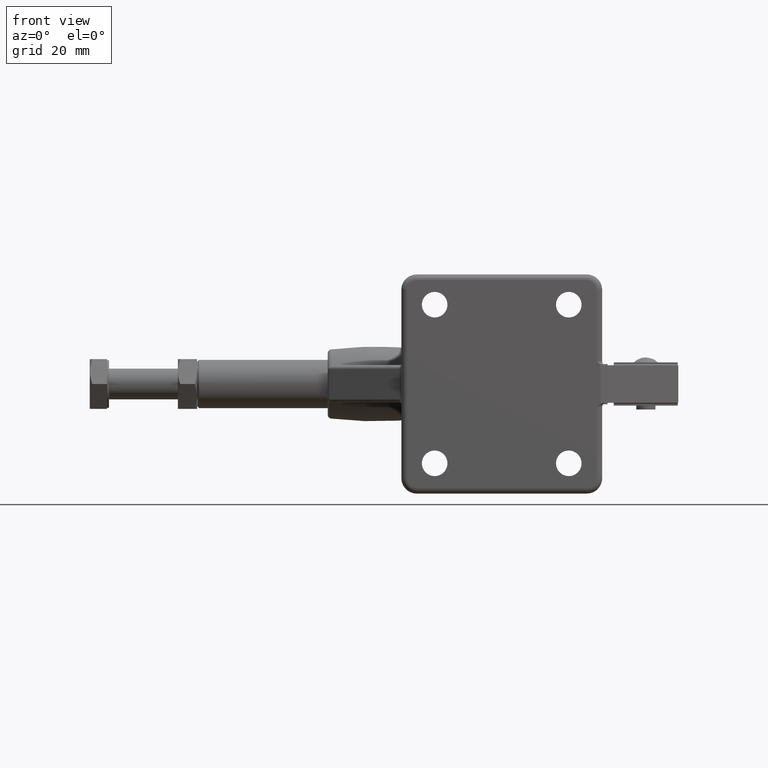
[diagram: clean part render]
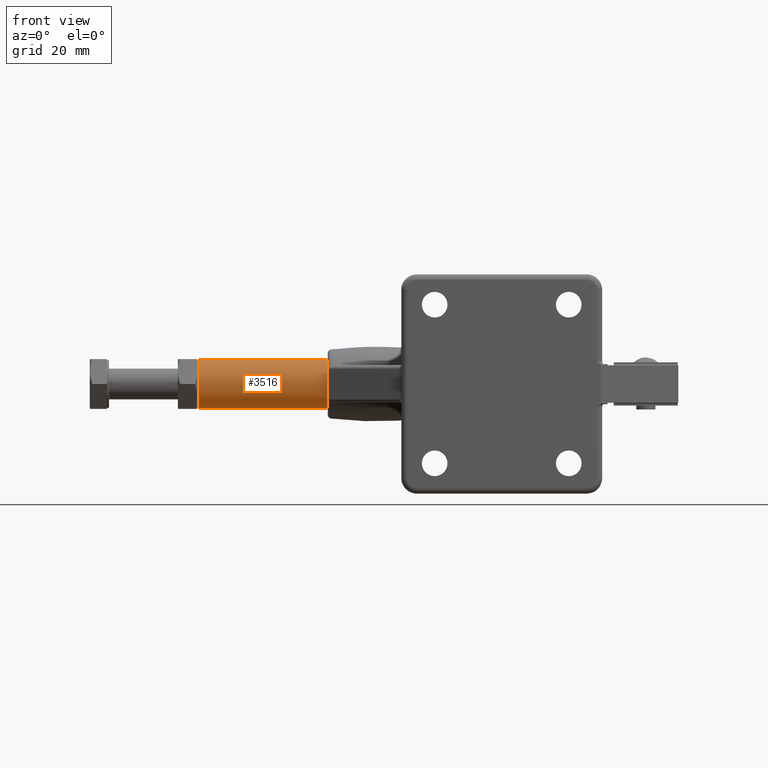
[diagram: same view with one face highlighted and labeled with its STEP entity id]
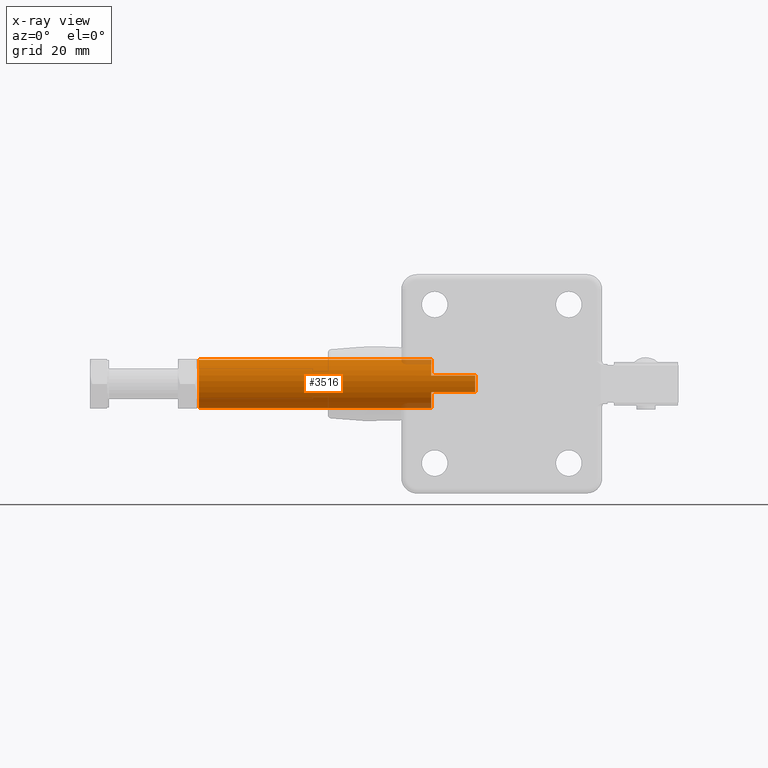
[diagram: x-ray of the same camera — body ghosted, the highlighted face saturated]
A machine part, front view. The second image highlights one B-rep face of the part: STEP entity #3516.
The next image is the same camera in x-ray: the body ghosted, the highlighted face saturated — about 2% of this face is hidden behind the body in this view.
In plain terms, the highlighted cylindrical surface (edge-blend (fillet) strip) has radius 6.29 mm, axis along (1, 0, 0).
Its self-contained STEP definition (entity closure, byte-faithful):
#322 = VERTEX_POINT ( 'NONE', #1667 ) ;
#547 = CARTESIAN_POINT ( 'NONE',  ( -123.6925406949552800, 25.39999999999909300, 6.289999999999988500 ) ) ;
#894 = EDGE_CURVE ( 'NONE', #2171, #7753, #6251, .T. ) ;
#983 = VECTOR ( 'NONE', #1307, 1000.000000000000000 ) ;
#1085 = VERTEX_POINT ( 'NONE', #4457 ) ;
#1236 = VERTEX_POINT ( 'NONE', #3031 ) ;
#1290 = CARTESIAN_POINT ( 'NONE',  ( -62.59254069495528900, 19.50728415753731700, 2.199999999999986000 ) ) ;
#1307 = DIRECTION ( 'NONE',  ( 1.000000000000000000, 0.0000000000000000000, 0.0000000000000000000 ) ) ;
#1425 = CARTESIAN_POINT ( 'NONE',  ( -123.1925406949552800, 25.39999999999909300, -1.214103693813256000E-014 ) ) ;
#1515 = DIRECTION ( 'NONE',  ( -1.000000000000000000, -0.0000000000000000000, -0.0000000000000000000 ) ) ;
#1667 = CARTESIAN_POINT ( 'NONE',  ( -62.59254069495528900, 25.39999999999909300, -6.290000000000012500 ) ) ;
#1818 = LINE ( 'NONE', #7761, #3562 ) ;
#1836 = VECTOR ( 'NONE', #1515, 1000.000000000000000 ) ;
#2171 = VERTEX_POINT ( 'NONE', #7708 ) ;
#2190 = DIRECTION ( 'NONE',  ( 0.0000000000000000000, 0.0000000000000000000, -1.000000000000000000 ) ) ;
#2367 = LINE ( 'NONE', #5393, #8293 ) ;
#2486 = VERTEX_POINT ( 'NONE', #4437 ) ;
#2552 = AXIS2_PLACEMENT_3D ( 'NONE', #3302, #8479, #4027 ) ;
#2635 = EDGE_CURVE ( 'NONE', #2486, #322, #2367, .T. ) ;
#2655 = AXIS2_PLACEMENT_3D ( 'NONE', #3106, #6730, #5169 ) ;
#2950 = EDGE_CURVE ( 'NONE', #6742, #2486, #3762, .T. ) ;
#3031 = CARTESIAN_POINT ( 'NONE',  ( -62.59254069495528900, 19.50728415753731700, -2.200000000000009900 ) ) ;
#3042 = ORIENTED_EDGE ( 'NONE', *, *, #5786, .F. ) ;
#3047 = EDGE_LOOP ( 'NONE', ( #7207, #7327, #7265, #6583, #3042, #5873, #7188, #3738 ) ) ;
#3106 = CARTESIAN_POINT ( 'NONE',  ( -62.59254069495528900, 25.39999999999909300, -1.214103693813256000E-014 ) ) ;
#3208 = EDGE_CURVE ( 'NONE', #1236, #322, #4893, .T. ) ;
#3302 = CARTESIAN_POINT ( 'NONE',  ( -62.59254069495528900, 25.39999999999909300, -1.214103693813256000E-014 ) ) ;
#3516 = ADVANCED_FACE ( 'NONE', ( #8510 ), #4319, .T. ) ;
#3562 = VECTOR ( 'NONE', #8504, 1000.000000000000000 ) ;
#3738 = ORIENTED_EDGE ( 'NONE', *, *, #894, .F. ) ;
#3762 = CIRCLE ( 'NONE', #8396, 6.290000000000000000 ) ;
#3981 = CARTESIAN_POINT ( 'NONE',  ( -51.09254069495528900, 25.39999999999909300, -1.214103693813256000E-014 ) ) ;
#4027 = DIRECTION ( 'NONE',  ( 0.0000000000000000000, 0.0000000000000000000, 1.000000000000000000 ) ) ;
#4319 = CYLINDRICAL_SURFACE ( 'NONE', #8841, 6.290000000000000000 ) ;
#4409 = DIRECTION ( 'NONE',  ( 0.0000000000000000000, 0.0000000000000000000, -1.000000000000000000 ) ) ;
#4437 = CARTESIAN_POINT ( 'NONE',  ( -123.1925406949552800, 25.39999999999909300, -6.290000000000012500 ) ) ;
#4457 = CARTESIAN_POINT ( 'NONE',  ( -51.09254069495528900, 19.50728415753731700, -2.200000000000009900 ) ) ;
#4709 = DIRECTION ( 'NONE',  ( 0.0000000000000000000, 0.0000000000000000000, -1.000000000000000000 ) ) ;
#4893 = CIRCLE ( 'NONE', #2552, 6.290000000000000000 ) ;
#4939 = LINE ( 'NONE', #547, #983 ) ;
#5169 = DIRECTION ( 'NONE',  ( 0.0000000000000000000, 0.0000000000000000000, 1.000000000000000000 ) ) ;
#5393 = CARTESIAN_POINT ( 'NONE',  ( -123.6925406949552800, 25.39999999999909300, -6.290000000000012500 ) ) ;
#5410 = CIRCLE ( 'NONE', #9588, 6.290000000000000000 ) ;
#5786 = EDGE_CURVE ( 'NONE', #1085, #1236, #7777, .T. ) ;
#5873 = ORIENTED_EDGE ( 'NONE', *, *, #6402, .T. ) ;
#6251 = CIRCLE ( 'NONE', #2655, 6.290000000000000000 ) ;
#6402 = EDGE_CURVE ( 'NONE', #1085, #6653, #5410, .T. ) ;
#6583 = ORIENTED_EDGE ( 'NONE', *, *, #3208, .F. ) ;
#6623 = DIRECTION ( 'NONE',  ( 1.000000000000000000, -0.0000000000000000000, -0.0000000000000000000 ) ) ;
#6653 = VERTEX_POINT ( 'NONE', #7981 ) ;
#6730 = DIRECTION ( 'NONE',  ( 1.000000000000000000, 0.0000000000000000000, 0.0000000000000000000 ) ) ;
#6742 = VERTEX_POINT ( 'NONE', #8012 ) ;
#6778 = CARTESIAN_POINT ( 'NONE',  ( -123.6925406949552800, 19.50728415753731700, -2.200000000000009900 ) ) ;
#6822 = DIRECTION ( 'NONE',  ( 1.000000000000000000, 0.0000000000000000000, 0.0000000000000000000 ) ) ;
#7188 = ORIENTED_EDGE ( 'NONE', *, *, #8066, .F. ) ;
#7207 = ORIENTED_EDGE ( 'NONE', *, *, #8242, .F. ) ;
#7265 = ORIENTED_EDGE ( 'NONE', *, *, #2635, .T. ) ;
#7327 = ORIENTED_EDGE ( 'NONE', *, *, #2950, .T. ) ;
#7708 = CARTESIAN_POINT ( 'NONE',  ( -62.59254069495528900, 25.39999999999909300, 6.289999999999988500 ) ) ;
#7753 = VERTEX_POINT ( 'NONE', #1290 ) ;
#7761 = CARTESIAN_POINT ( 'NONE',  ( -123.6925406949552800, 19.50728415753731700, 2.199999999999986000 ) ) ;
#7777 = LINE ( 'NONE', #6778, #1836 ) ;
#7981 = CARTESIAN_POINT ( 'NONE',  ( -51.09254069495528900, 19.50728415753731700, 2.199999999999986000 ) ) ;
#8012 = CARTESIAN_POINT ( 'NONE',  ( -123.1925406949552800, 25.39999999999909300, 6.289999999999988500 ) ) ;
#8066 = EDGE_CURVE ( 'NONE', #7753, #6653, #1818, .T. ) ;
#8095 = DIRECTION ( 'NONE',  ( 1.000000000000000000, 0.0000000000000000000, 0.0000000000000000000 ) ) ;
#8242 = EDGE_CURVE ( 'NONE', #6742, #2171, #4939, .T. ) ;
#8293 = VECTOR ( 'NONE', #6822, 1000.000000000000000 ) ;
#8396 = AXIS2_PLACEMENT_3D ( 'NONE', #1425, #6623, #2190 ) ;
#8479 = DIRECTION ( 'NONE',  ( 1.000000000000000000, -0.0000000000000000000, -0.0000000000000000000 ) ) ;
#8504 = DIRECTION ( 'NONE',  ( 1.000000000000000000, 0.0000000000000000000, 0.0000000000000000000 ) ) ;
#8510 = FACE_OUTER_BOUND ( 'NONE', #3047, .T. ) ;
#8841 = AXIS2_PLACEMENT_3D ( 'NONE', #8866, #8095, #4409 ) ;
#8866 = CARTESIAN_POINT ( 'NONE',  ( -123.6925406949552800, 25.39999999999909300, -1.214103693813256000E-014 ) ) ;
#9166 = DIRECTION ( 'NONE',  ( -1.000000000000000000, 0.0000000000000000000, 0.0000000000000000000 ) ) ;
#9588 = AXIS2_PLACEMENT_3D ( 'NONE', #3981, #9166, #4709 ) ;